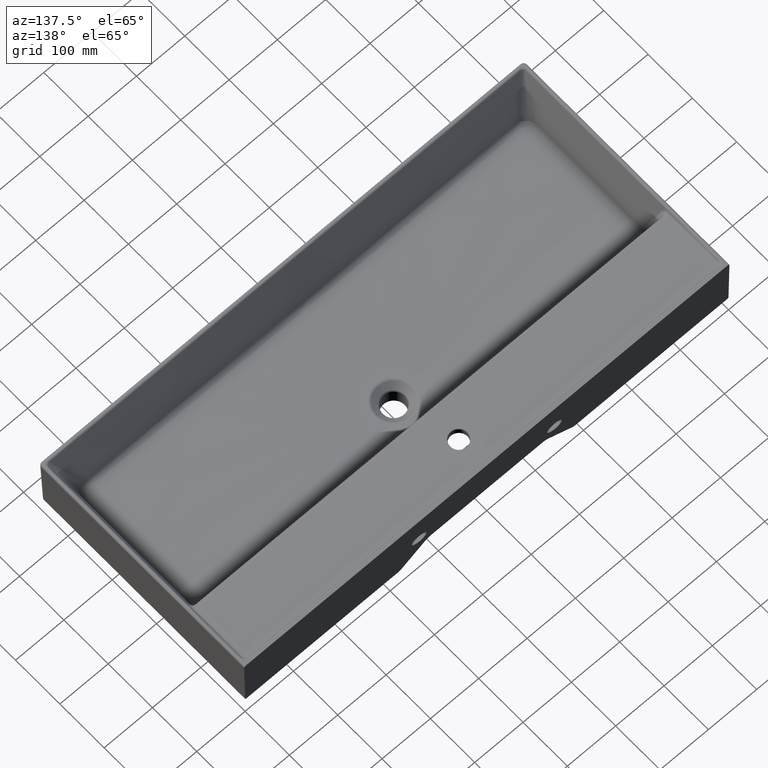
[diagram: clean part render]
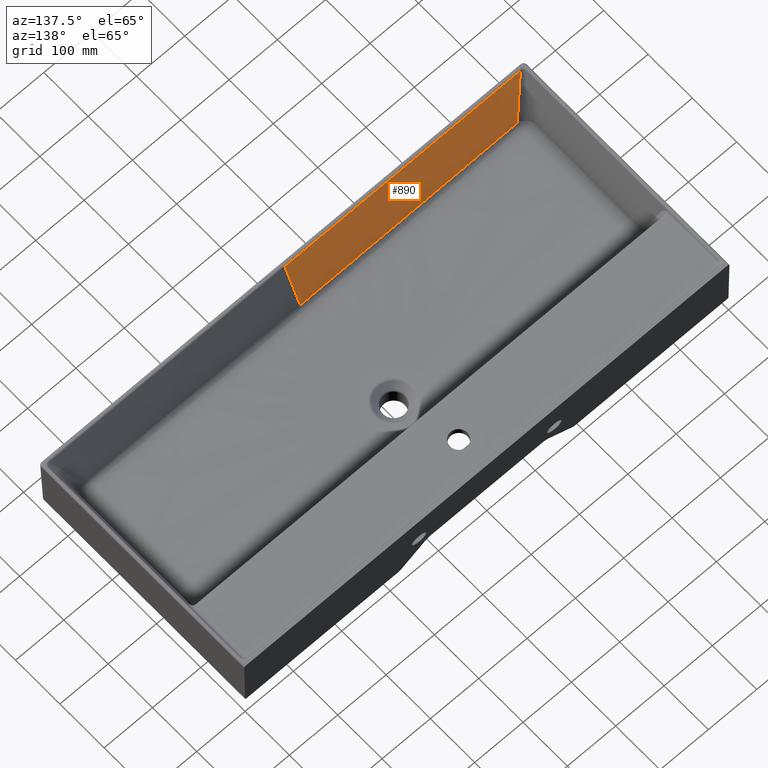
[diagram: same view with one face highlighted and labeled with its STEP entity id]
A machine part, auxiliary view. The second image highlights one B-rep face of the part: STEP entity #890.
In plain terms, the highlighted face is a freeform B-spline surface patch.
Its self-contained STEP definition (entity closure, byte-faithful):
#831=B_SPLINE_SURFACE_WITH_KNOTS('',3,3,((#9641,#9642,#9643,#9644,#9645,
#9646,#9647,#9648,#9649,#9650),(#9651,#9652,#9653,#9654,#9655,#9656,#9657,
#9658,#9659,#9660),(#9661,#9662,#9663,#9664,#9665,#9666,#9667,#9668,#9669,
#9670),(#9671,#9672,#9673,#9674,#9675,#9676,#9677,#9678,#9679,#9680),(#9681,
#9682,#9683,#9684,#9685,#9686,#9687,#9688,#9689,#9690),(#9691,#9692,#9693,
#9694,#9695,#9696,#9697,#9698,#9699,#9700),(#9701,#9702,#9703,#9704,#9705,
#9706,#9707,#9708,#9709,#9710),(#9711,#9712,#9713,#9714,#9715,#9716,#9717,
#9718,#9719,#9720),(#9721,#9722,#9723,#9724,#9725,#9726,#9727,#9728,#9729,
#9730),(#9731,#9732,#9733,#9734,#9735,#9736,#9737,#9738,#9739,#9740),(#9741,
#9742,#9743,#9744,#9745,#9746,#9747,#9748,#9749,#9750),(#9751,#9752,#9753,
#9754,#9755,#9756,#9757,#9758,#9759,#9760),(#9761,#9762,#9763,#9764,#9765,
#9766,#9767,#9768,#9769,#9770)),.UNSPECIFIED.,.F.,.F.,.F.,(4,3,1,1,1,3,
4),(4,3,3,4),(0.,0.333333333333333,0.416666666666667,0.5,0.583333333333333,
0.666666666666667,1.),(0.,0.333333333333333,0.666666666666667,1.),
 .UNSPECIFIED.);
#890=ADVANCED_FACE('',(#1249),#831,.F.);
#1249=FACE_OUTER_BOUND('',#1634,.T.);
#1634=EDGE_LOOP('',(#2573,#2574,#2575,#2576));
#2573=ORIENTED_EDGE('',*,*,#4711,.T.);
#2574=ORIENTED_EDGE('',*,*,#4712,.T.);
#2575=ORIENTED_EDGE('',*,*,#4713,.T.);
#2576=ORIENTED_EDGE('',*,*,#4714,.T.);
#4201=VERTEX_POINT('',#9613);
#4202=VERTEX_POINT('',#9614);
#4203=VERTEX_POINT('',#9619);
#4204=VERTEX_POINT('',#9636);
#4711=EDGE_CURVE('',#4201,#4202,#5416,.T.);
#4712=EDGE_CURVE('',#4202,#4203,#5417,.T.);
#4713=EDGE_CURVE('',#4203,#4204,#5418,.T.);
#4714=EDGE_CURVE('',#4204,#4201,#5419,.T.);
#5416=B_SPLINE_CURVE_WITH_KNOTS('',3,(#9607,#9608,#9609,#9610,#9611,#9612),
 .UNSPECIFIED.,.F.,.F.,(4,2,4),(0.,0.5,1.),.UNSPECIFIED.);
#5417=B_SPLINE_CURVE_WITH_KNOTS('',3,(#9615,#9616,#9617,#9618),
 .UNSPECIFIED.,.F.,.F.,(4,4),(0.,1.),.UNSPECIFIED.);
#5418=B_SPLINE_CURVE_WITH_KNOTS('',3,(#9620,#9621,#9622,#9623,#9624,#9625,
#9626,#9627,#9628,#9629,#9630,#9631,#9632,#9633,#9634,#9635),
 .UNSPECIFIED.,.F.,.F.,(4,3,3,3,3,4),(0.,0.0164277862824467,0.0821389314147211,
0.344983512221466,0.870672686379158,1.),.UNSPECIFIED.);
#5419=B_SPLINE_CURVE_WITH_KNOTS('',3,(#9637,#9638,#9639,#9640),
 .UNSPECIFIED.,.F.,.F.,(4,4),(0.,1.),.UNSPECIFIED.);
#9607=CARTESIAN_POINT('',(-3.37982972639636E-14,-421.178727787867,-72.0233683029092));
#9608=CARTESIAN_POINT('',(-74.6898830988012,-421.178727787867,-72.0233683029097));
#9609=CARTESIAN_POINT('',(-149.348304477466,-421.059870003862,-70.5592794078548));
#9610=CARTESIAN_POINT('',(-298.649190003788,-420.676891263964,-66.8977999777121));
#9611=CARTESIAN_POINT('',(-373.291982232092,-420.390946267191,-64.7181946846432));
#9612=CARTESIAN_POINT('',(-447.933650360895,-420.137136829494,-62.4823069633124));
#9613=CARTESIAN_POINT('',(3.37982972639634E-14,-421.178727787867,-72.0233683029091));
#9614=CARTESIAN_POINT('',(-447.933660789754,-420.137140737181,-62.4823061069018));
#9615=CARTESIAN_POINT('',(-447.933653158618,-420.137139392459,-62.4823015371168));
#9616=CARTESIAN_POINT('',(-461.679919030612,-432.729948760379,-35.8213601011776));
#9617=CARTESIAN_POINT('',(-474.710418066349,-444.591577666987,-10.7627798289545));
#9618=CARTESIAN_POINT('',(-486.979739181063,-455.722026112385,12.7143066378177));
#9619=CARTESIAN_POINT('',(-486.979740770669,-455.722027297528,12.7143052452082));
#9620=CARTESIAN_POINT('',(-486.97974089243,-455.722027664898,12.7143099124823));
#9621=CARTESIAN_POINT('',(-484.313074789477,-455.722522929538,12.7126482246372));
#9622=CARTESIAN_POINT('',(-481.646408683894,-455.723018469058,12.7109908349163));
#9623=CARTESIAN_POINT('',(-478.979742575715,-455.723514267392,12.7093377153636));
#9624=CARTESIAN_POINT('',(-468.313078142798,-455.725497460725,12.7027252371524));
#9625=CARTESIAN_POINT('',(-457.64641366809,-455.727484789135,12.6961810782574));
#9626=CARTESIAN_POINT('',(-446.979749153771,-455.729475272418,12.6897034764732));
#9627=CARTESIAN_POINT('',(-404.313091073968,-455.737437205554,12.6637930693225));
#9628=CARTESIAN_POINT('',(-361.646432455422,-455.745533529209,12.6386983056364));
#9629=CARTESIAN_POINT('',(-318.979772360294,-455.753054973043,12.6161995256843));
#9630=CARTESIAN_POINT('',(-233.646451126963,-455.768097860893,12.5712019652301));
#9631=CARTESIAN_POINT('',(-148.313122462691,-455.781864461585,12.533681468977));
#9632=CARTESIAN_POINT('',(-62.979789198575,-455.786736960524,12.520487766525));
#9633=CARTESIAN_POINT('',(-41.9865263426188,-455.787935667373,12.5172419204643));
#9634=CARTESIAN_POINT('',(-20.9932631411052,-455.788584106623,12.5154981482242));
#9635=CARTESIAN_POINT('',(-9.64935439489033E-16,-455.788584106623,12.5154981482243));
#9636=CARTESIAN_POINT('',(-9.64935439489097E-16,-455.788584106623,12.5154981482243));
#9637=CARTESIAN_POINT('',(-9.64935439489251E-16,-455.788584106623,12.5154981482237));
#9638=CARTESIAN_POINT('',(-1.19093893809807E-14,-444.251965333704,-15.6641240021541));
#9639=CARTESIAN_POINT('',(-2.28538433224723E-14,-432.715346560787,-43.8437461525319));
#9640=CARTESIAN_POINT('',(-3.37982972639637E-14,-421.178727787867,-72.0233683029097));
#9641=CARTESIAN_POINT('',(-664.754827409532,-378.86969892178,-127.42215954863));
#9642=CARTESIAN_POINT('',(-685.564265745972,-391.859037220554,-103.685132957194));
#9643=CARTESIAN_POINT('',(-706.373704082413,-404.848375519329,-79.9481063657587));
#9644=CARTESIAN_POINT('',(-727.183142418854,-417.837713818103,-56.2110797743233));
#9645=CARTESIAN_POINT('',(-747.992580755295,-430.827052116878,-32.4740531828878));
#9646=CARTESIAN_POINT('',(-768.802019091452,-443.816390415292,-8.73702659144143));
#9647=CARTESIAN_POINT('',(-789.611457427742,-456.805728713873,15.0000000000001));
#9648=CARTESIAN_POINT('',(-810.420895764033,-469.795067012454,38.7370265914416));
#9649=CARTESIAN_POINT('',(-831.230334100323,-482.784405311036,62.4740531828832));
#9650=CARTESIAN_POINT('',(-852.039772436613,-495.773743609617,86.2110797743247));
#9651=CARTESIAN_POINT('',(-554.005084516667,-378.869698921976,-137.004173151474));
#9652=CARTESIAN_POINT('',(-571.339161740013,-391.859037220687,-111.670144292897));
#9653=CARTESIAN_POINT('',(-588.67323896336,-404.848375519399,-86.3361154343198));
#9654=CARTESIAN_POINT('',(-606.007316186706,-417.83771381811,-61.0020865757428));
#9655=CARTESIAN_POINT('',(-623.341393410052,-430.827052116821,-35.6680577171657));
#9656=CARTESIAN_POINT('',(-640.675470633207,-443.816390415291,-10.3340288585811));
#9657=CARTESIAN_POINT('',(-658.009547856452,-456.805728713873,15.));
#9658=CARTESIAN_POINT('',(-675.343625079697,-469.795067012454,40.3340288585812));
#9659=CARTESIAN_POINT('',(-692.677702302941,-482.784405311036,65.6680577171625));
#9660=CARTESIAN_POINT('',(-710.011779526186,-495.773743609617,91.0020865757437));
#9661=CARTESIAN_POINT('',(-443.255341623803,-378.869698922173,-146.586186754318));
#9662=CARTESIAN_POINT('',(-457.114057734054,-391.859037220821,-119.6551556286));
#9663=CARTESIAN_POINT('',(-470.972773844306,-404.848375519469,-92.7241245028808));
#9664=CARTESIAN_POINT('',(-484.831489954558,-417.837713818117,-65.7930933771622));
#9665=CARTESIAN_POINT('',(-498.69020606481,-430.827052116765,-38.8620622514436));
#9666=CARTESIAN_POINT('',(-512.548922174963,-443.81639041529,-11.9310311257208));
#9667=CARTESIAN_POINT('',(-526.407638285162,-456.805728713872,15.));
#9668=CARTESIAN_POINT('',(-540.266354395361,-469.795067012454,41.9310311257209));
#9669=CARTESIAN_POINT('',(-554.12507050556,-482.784405311036,68.8620622514418));
#9670=CARTESIAN_POINT('',(-567.983786615759,-495.773743609618,95.7930933771627));
#9671=CARTESIAN_POINT('',(-332.505598730938,-378.869698922369,-156.168200357162));
#9672=CARTESIAN_POINT('',(-342.888953728095,-391.859037220954,-127.640166964302));
#9673=CARTESIAN_POINT('',(-353.272308725253,-404.848375519539,-99.1121335714419));
#9674=CARTESIAN_POINT('',(-363.65566372241,-417.837713818123,-70.5841001785817));
#9675=CARTESIAN_POINT('',(-374.039018719568,-430.827052116708,-42.0560667857215));
#9676=CARTESIAN_POINT('',(-384.422373716718,-443.816390415289,-13.5280333928606));
#9677=CARTESIAN_POINT('',(-394.805728713871,-456.805728713871,15.));
#9678=CARTESIAN_POINT('',(-405.189083711025,-469.795067012454,43.5280333928606));
#9679=CARTESIAN_POINT('',(-415.572438708178,-482.784405311036,72.0560667857211));
#9680=CARTESIAN_POINT('',(-425.955793705332,-495.773743609619,100.584100178582));
#9681=CARTESIAN_POINT('',(-304.818163007722,-378.869698922418,-158.563703757873));
#9682=CARTESIAN_POINT('',(-314.332677726606,-391.859037220987,-129.636419798228));
#9683=CARTESIAN_POINT('',(-323.84719244549,-404.848375519556,-100.709135838582));
#9684=CARTESIAN_POINT('',(-333.361707164373,-417.837713818125,-71.7818518789366));
#9685=CARTESIAN_POINT('',(-342.876221883257,-430.827052116694,-42.854567919291));
#9686=CARTESIAN_POINT('',(-352.390736602157,-443.816390415289,-13.9272839596455));
#9687=CARTESIAN_POINT('',(-361.905251321049,-456.805728713871,15.));
#9688=CARTESIAN_POINT('',(-371.419766039941,-469.795067012454,43.9272839596455));
#9689=CARTESIAN_POINT('',(-380.934280758833,-482.784405311036,72.8545679192909));
#9690=CARTESIAN_POINT('',(-390.448795477725,-495.773743609619,101.781851878936));
#9691=CARTESIAN_POINT('',(-249.437721766895,-378.86969892235,-163.208265996837));
#9692=CARTESIAN_POINT('',(-257.215484228319,-391.859037220941,-133.506888330698));
#9693=CARTESIAN_POINT('',(-264.993246689743,-404.848375519532,-103.805510664559));
#9694=CARTESIAN_POINT('',(-272.771009151167,-417.837713818123,-74.1041329984195));
#9695=CARTESIAN_POINT('',(-280.548771612591,-430.827052116715,-44.4027553322805));
#9696=CARTESIAN_POINT('',(-288.326534073992,-443.816390415289,-14.7013776661399));
#9697=CARTESIAN_POINT('',(-296.104296535403,-456.805728713872,15.));
#9698=CARTESIAN_POINT('',(-303.882058996815,-469.795067012454,44.7013776661399));
#9699=CARTESIAN_POINT('',(-311.659821458227,-482.784405311037,74.4027553322798));
#9700=CARTESIAN_POINT('',(-319.437583919639,-495.77374360962,104.10413299842));
#9701=CARTESIAN_POINT('',(-166.339828425372,-378.869698922373,-169.401808269209));
#9702=CARTESIAN_POINT('',(-171.517001080632,-391.859037220957,-138.668173557675));
#9703=CARTESIAN_POINT('',(-176.694173735892,-404.84837551954,-107.934538846141));
#9704=CARTESIAN_POINT('',(-181.871346391152,-417.837713818124,-77.2009041346067));
#9705=CARTESIAN_POINT('',(-187.048519046412,-430.827052116707,-46.4672694230726));
#9706=CARTESIAN_POINT('',(-192.225691701674,-443.816390415289,-15.7336347115356));
#9707=CARTESIAN_POINT('',(-197.402864356936,-456.805728713871,15.));
#9708=CARTESIAN_POINT('',(-202.580037012197,-469.795067012453,45.7336347115356));
#9709=CARTESIAN_POINT('',(-207.757209667458,-482.784405311036,76.4672694230712));
#9710=CARTESIAN_POINT('',(-212.93438232272,-495.773743609618,107.200904134607));
#9711=CARTESIAN_POINT('',(-83.1969536369165,-378.869698922382,-174.119142010282));
#9712=CARTESIAN_POINT('',(-85.781033393842,-391.859037220963,-142.599285008568));
#9713=CARTESIAN_POINT('',(-88.3651131507675,-404.848375519544,-111.079428006853));
#9714=CARTESIAN_POINT('',(-90.949192907693,-417.837713818124,-79.5595710051391));
#9715=CARTESIAN_POINT('',(-93.5332726646184,-430.827052116705,-48.0397140034249));
#9716=CARTESIAN_POINT('',(-96.1173524215429,-443.816390415289,-16.519857001713));
#9717=CARTESIAN_POINT('',(-98.7014321784679,-456.805728713872,15.));
#9718=CARTESIAN_POINT('',(-101.285511935393,-469.795067012454,46.519857001713));
#9719=CARTESIAN_POINT('',(-103.869591692318,-482.784405311037,78.039714003426));
#9720=CARTESIAN_POINT('',(-106.453671449243,-495.773743609619,109.559571005139));
#9721=CARTESIAN_POINT('',(-27.7327781260746,-378.869698922366,-175.368418568212));
#9722=CARTESIAN_POINT('',(-28.5940613371991,-391.859037220952,-143.640348806843));
#9723=CARTESIAN_POINT('',(-29.4553445483235,-404.848375519538,-111.912279045475));
#9724=CARTESIAN_POINT('',(-30.316627759448,-417.837713818123,-80.1842092841069));
#9725=CARTESIAN_POINT('',(-31.1779109705725,-430.827052116709,-48.4561395227387));
#9726=CARTESIAN_POINT('',(-32.0391941816977,-443.816390415289,-16.728069761369));
#9727=CARTESIAN_POINT('',(-32.9004773928226,-456.805728713871,15.));
#9728=CARTESIAN_POINT('',(-33.7617606039475,-469.795067012453,46.728069761369));
#9729=CARTESIAN_POINT('',(-34.6230438150723,-482.784405311035,78.4561395227379));
#9730=CARTESIAN_POINT('',(-35.4843270261972,-495.773743609617,110.184209284107));
#9731=CARTESIAN_POINT('',(-7.39356396553544E-14,-378.869698922369,-175.368418568214));
#9732=CARTESIAN_POINT('',(-6.16130330461288E-14,-391.859037220954,-143.640348806845));
#9733=CARTESIAN_POINT('',(-4.92904264369031E-14,-404.848375519539,-111.912279045476));
#9734=CARTESIAN_POINT('',(-3.69678198276774E-14,-417.837713818123,-80.184209284107));
#9735=CARTESIAN_POINT('',(-2.46452132184517E-14,-430.827052116708,-48.4561395227381));
#9736=CARTESIAN_POINT('',(-1.23226066092258E-14,-443.816390415289,-16.728069761369));
#9737=CARTESIAN_POINT('',(0.,-456.805728713871,15.));
#9738=CARTESIAN_POINT('',(1.23226066092258E-14,-469.795067012454,46.728069761369));
#9739=CARTESIAN_POINT('',(2.46452132184516E-14,-482.784405311036,78.4561395227379));
#9740=CARTESIAN_POINT('',(3.69678198276774E-14,-495.773743609619,110.184209284107));
#9741=CARTESIAN_POINT('',(110.931112504298,-378.869698922381,-175.368418568222));
#9742=CARTESIAN_POINT('',(114.376245348796,-391.859037220962,-143.640348806851));
#9743=CARTESIAN_POINT('',(117.821378193294,-404.848375519543,-111.912279045479));
#9744=CARTESIAN_POINT('',(121.266511037792,-417.837713818124,-80.1842092841072));
#9745=CARTESIAN_POINT('',(124.71164388229,-430.827052116705,-48.4561395227356));
#9746=CARTESIAN_POINT('',(128.156776726791,-443.81639041529,-16.728069761369));
#9747=CARTESIAN_POINT('',(131.60190957129,-456.805728713873,15.));
#9748=CARTESIAN_POINT('',(135.04704241579,-469.795067012457,46.728069761369));
#9749=CARTESIAN_POINT('',(138.492175260289,-482.78440531104,78.456139522738));
#9750=CARTESIAN_POINT('',(141.937308104789,-495.773743609624,110.184209284107));
#9751=CARTESIAN_POINT('',(221.862225008596,-378.869698922394,-175.36841856823));
#9752=CARTESIAN_POINT('',(228.752490697592,-391.859037220971,-143.640348806856));
#9753=CARTESIAN_POINT('',(235.642756386588,-404.848375519548,-111.912279045482));
#9754=CARTESIAN_POINT('',(242.533022075584,-417.837713818125,-80.1842092841075));
#9755=CARTESIAN_POINT('',(249.42328776458,-430.827052116702,-48.4561395227332));
#9756=CARTESIAN_POINT('',(256.313553453582,-443.81639041529,-16.728069761369));
#9757=CARTESIAN_POINT('',(263.203819142581,-456.805728713875,15.));
#9758=CARTESIAN_POINT('',(270.09408483158,-469.79506701246,46.7280697613691));
#9759=CARTESIAN_POINT('',(276.984350520579,-482.784405311044,78.4561395227382));
#9760=CARTESIAN_POINT('',(283.874616209578,-495.773743609629,110.184209284107));
#9761=CARTESIAN_POINT('',(332.793337512894,-378.869698922406,-175.368418568239));
#9762=CARTESIAN_POINT('',(343.128736046388,-391.859037220979,-143.640348806862));
#9763=CARTESIAN_POINT('',(353.464134579882,-404.848375519553,-111.912279045485));
#9764=CARTESIAN_POINT('',(363.799533113376,-417.837713818126,-80.1842092841078));
#9765=CARTESIAN_POINT('',(374.13493164687,-430.827052116699,-48.4561395227308));
#9766=CARTESIAN_POINT('',(384.470330180373,-443.816390415291,-16.728069761369));
#9767=CARTESIAN_POINT('',(394.805728713871,-456.805728713877,15.));
#9768=CARTESIAN_POINT('',(405.14112724737,-469.795067012462,46.7280697613691));
#9769=CARTESIAN_POINT('',(415.476525780868,-482.784405311048,78.4561395227383));
#9770=CARTESIAN_POINT('',(425.811924314367,-495.773743609634,110.184209284107));